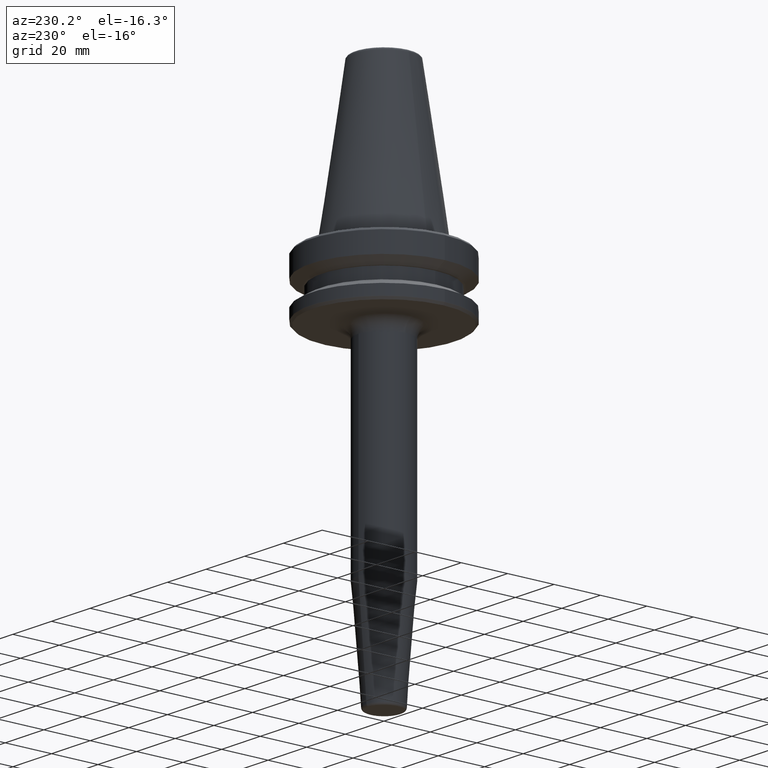
[diagram: clean part render]
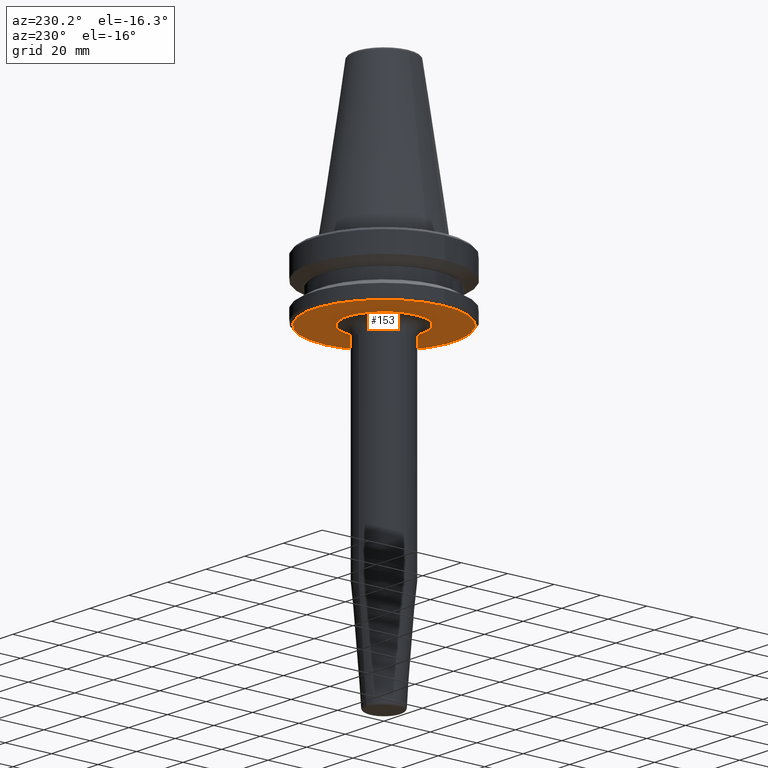
[diagram: same view with one face highlighted and labeled with its STEP entity id]
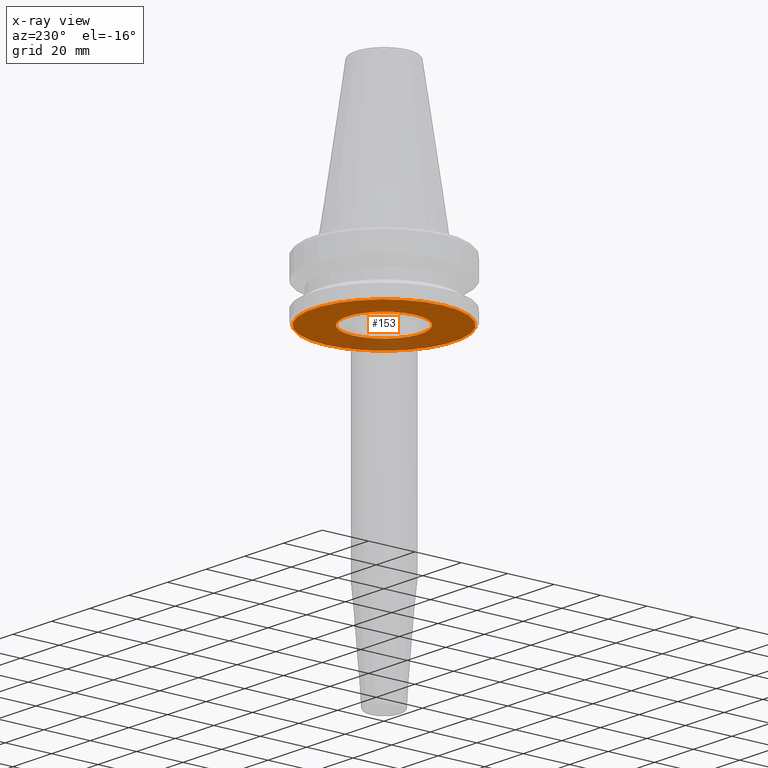
[diagram: x-ray of the same camera — body ghosted, the highlighted face saturated]
A machine part, auxiliary view. The second image highlights one B-rep face of the part: STEP entity #153.
The next image is the same camera in x-ray: the body ghosted, the highlighted face saturated — about 14% of this face is hidden behind the body in this view.
In plain terms, the highlighted planar face has unit normal (0, 0, -1).
Its self-contained STEP definition (entity closure, byte-faithful):
#11 = VERTEX_POINT ( 'NONE', #912 ) ;
#32 = DIRECTION ( 'NONE',  ( -0.0000000000000000000, -0.0000000000000000000, 1.000000000000000000 ) ) ;
#45 = DIRECTION ( 'NONE',  ( -1.000000000000000000, 0.0000000000000000000, 0.0000000000000000000 ) ) ;
#69 = CARTESIAN_POINT ( 'NONE',  ( 16.00000000000001400, 2.336957576117281900E-015, -27.00000000000000400 ) ) ;
#117 = VERTEX_POINT ( 'NONE', #69 ) ;
#120 = ORIENTED_EDGE ( 'NONE', *, *, #999, .T. ) ;
#153 = ADVANCED_FACE ( 'NONE', ( #227, #412 ), #270, .T. ) ;
#177 = DIRECTION ( 'NONE',  ( -1.000000000000000000, 0.0000000000000000000, -0.0000000000000000000 ) ) ;
#227 = FACE_BOUND ( 'NONE', #1229, .T. ) ;
#264 = EDGE_CURVE ( 'NONE', #502, #11, #482, .T. ) ;
#270 = PLANE ( 'NONE',  #420 ) ;
#304 = ORIENTED_EDGE ( 'NONE', *, *, #264, .F. ) ;
#322 = CARTESIAN_POINT ( 'NONE',  ( 0.0000000000000000000, 0.0000000000000000000, -26.99999999999999600 ) ) ;
#338 = CARTESIAN_POINT ( 'NONE',  ( 0.0000000000000000000, 0.0000000000000000000, -26.99999999999999600 ) ) ;
#344 = ORIENTED_EDGE ( 'NONE', *, *, #358, .F. ) ;
#358 = EDGE_CURVE ( 'NONE', #11, #502, #868, .T. ) ;
#407 = DIRECTION ( 'NONE',  ( -0.0000000000000000000, -0.0000000000000000000, 1.000000000000000000 ) ) ;
#412 = FACE_OUTER_BOUND ( 'NONE', #774, .T. ) ;
#420 = AXIS2_PLACEMENT_3D ( 'NONE', #1148, #563, #177 ) ;
#428 = AXIS2_PLACEMENT_3D ( 'NONE', #338, #32, #723 ) ;
#482 = CIRCLE ( 'NONE', #428, 30.33431457505076200 ) ;
#502 = VERTEX_POINT ( 'NONE', #860 ) ;
#537 = VERTEX_POINT ( 'NONE', #888 ) ;
#563 = DIRECTION ( 'NONE',  ( 0.0000000000000000000, 0.0000000000000000000, -1.000000000000000000 ) ) ;
#590 = DIRECTION ( 'NONE',  ( -0.0000000000000000000, -0.0000000000000000000, 1.000000000000000000 ) ) ;
#641 = DIRECTION ( 'NONE',  ( -0.0000000000000000000, -0.0000000000000000000, 1.000000000000000000 ) ) ;
#707 = EDGE_CURVE ( 'NONE', #117, #537, #1250, .T. ) ;
#708 = AXIS2_PLACEMENT_3D ( 'NONE', #322, #407, #974 ) ;
#723 = DIRECTION ( 'NONE',  ( 1.000000000000000000, 0.0000000000000000000, 0.0000000000000000000 ) ) ;
#774 = EDGE_LOOP ( 'NONE', ( #304, #344 ) ) ;
#860 = CARTESIAN_POINT ( 'NONE',  ( 30.33431457505076200, 0.0000000000000000000, -26.99999999999999600 ) ) ;
#867 = CIRCLE ( 'NONE', #1075, 16.00000000000001400 ) ;
#868 = CIRCLE ( 'NONE', #708, 30.33431457505076200 ) ;
#888 = CARTESIAN_POINT ( 'NONE',  ( -16.00000000000001400, 3.775226974815149000E-016, -27.00000000000000400 ) ) ;
#912 = CARTESIAN_POINT ( 'NONE',  ( -30.33431457505076200, 3.732201245991191800E-015, -26.99999999999999600 ) ) ;
#974 = DIRECTION ( 'NONE',  ( 1.000000000000000000, 0.0000000000000000000, 0.0000000000000000000 ) ) ;
#999 = EDGE_CURVE ( 'NONE', #537, #117, #867, .T. ) ;
#1075 = AXIS2_PLACEMENT_3D ( 'NONE', #1228, #641, #45 ) ;
#1148 = CARTESIAN_POINT ( 'NONE',  ( 0.0000000000000000000, 3.088089149698245900E-015, -27.00000000000000400 ) ) ;
#1173 = CARTESIAN_POINT ( 'NONE',  ( 0.0000000000000000000, 3.775226974815149000E-016, -27.00000000000000400 ) ) ;
#1227 = AXIS2_PLACEMENT_3D ( 'NONE', #1173, #590, #1266 ) ;
#1228 = CARTESIAN_POINT ( 'NONE',  ( 0.0000000000000000000, 3.775226974815149000E-016, -27.00000000000000400 ) ) ;
#1229 = EDGE_LOOP ( 'NONE', ( #120, #1279 ) ) ;
#1250 = CIRCLE ( 'NONE', #1227, 16.00000000000001400 ) ;
#1266 = DIRECTION ( 'NONE',  ( -1.000000000000000000, 0.0000000000000000000, 0.0000000000000000000 ) ) ;
#1279 = ORIENTED_EDGE ( 'NONE', *, *, #707, .T. ) ;